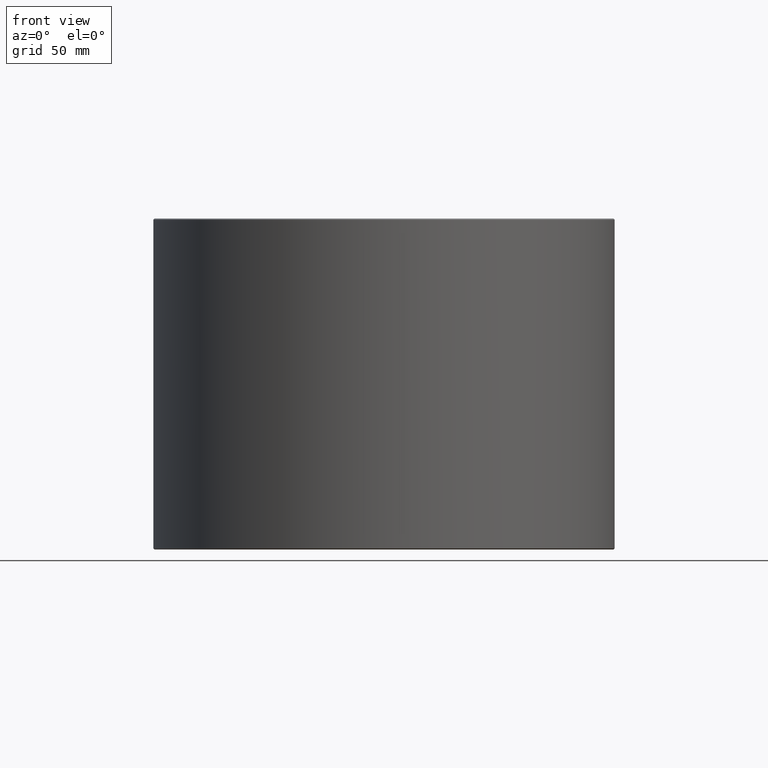
[diagram: clean part render]
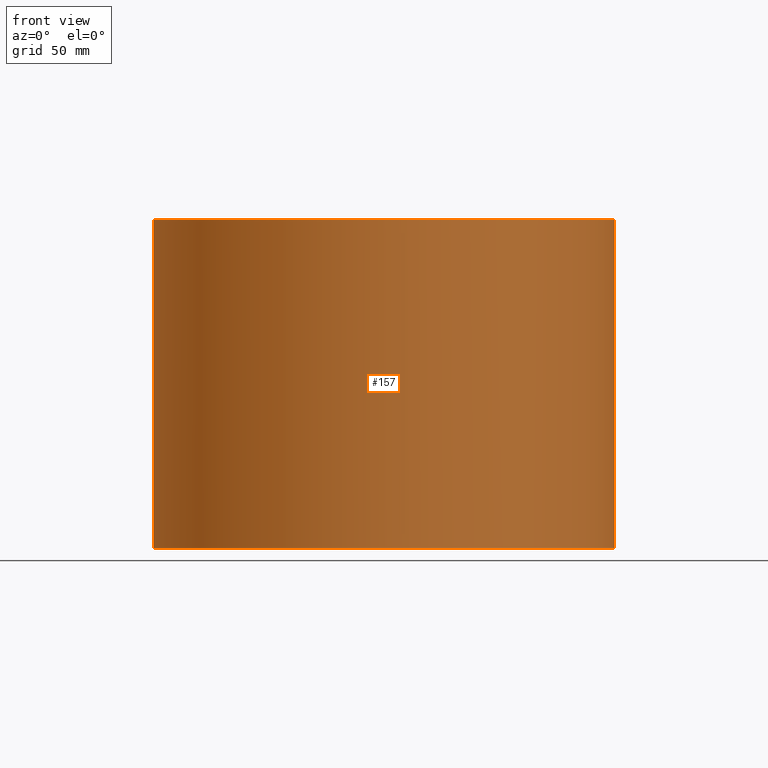
[diagram: same view with one face highlighted and labeled with its STEP entity id]
A machine part, front view. The second image highlights one B-rep face of the part: STEP entity #157.
In plain terms, the highlighted cylindrical surface (partial cylindrical patch) has radius 97.5 mm, axis along (-0, 0, -1).
Its self-contained STEP definition (entity closure, byte-faithful):
#157=ADVANCED_FACE('',(#173),#174,.T.);
#173=FACE_OUTER_BOUND('',#194,.T.);
#174=CYLINDRICAL_SURFACE('',#195,0.0975);
#194=EDGE_LOOP('',(#234,#235,#236,#237));
#195=AXIS2_PLACEMENT_3D('',#238,#239,#240);
#234=ORIENTED_EDGE('',*,*,#297,.T.);
#235=ORIENTED_EDGE('',*,*,#298,.F.);
#236=ORIENTED_EDGE('',*,*,#294,.F.);
#237=ORIENTED_EDGE('',*,*,#299,.T.);
#238=CARTESIAN_POINT('',(-3.46944695195362E-018,-2.60208521396521E-018,-5.42101086242752E-020));
#239=DIRECTION('',(6.12323399573677E-017,0.0,-1.0));
#240=DIRECTION('',(-1.0,0.0,-6.12323399573677E-017));
#294=EDGE_CURVE('',#326,#327,#328,.T.);
#297=EDGE_CURVE('',#331,#332,#333,.T.);
#298=EDGE_CURVE('',#327,#332,#334,.T.);
#299=EDGE_CURVE('',#326,#331,#335,.T.);
#326=VERTEX_POINT('',#372);
#327=VERTEX_POINT('',#373);
#328=CIRCLE('',#374,0.0975);
#331=VERTEX_POINT('',#379);
#332=VERTEX_POINT('',#380);
#333=CIRCLE('',#381,0.0975);
#334=LINE('',#382,#383);
#335=LINE('',#384,#385);
#372=CARTESIAN_POINT('',(0.00170160962763515,0.0974851502777482,0.0005));
#373=CARTESIAN_POINT('',(-3.46944695195362E-018,0.0975,0.0005));
#374=AXIS2_PLACEMENT_3D('',#422,#423,#424);
#379=CARTESIAN_POINT('',(0.00170160962763514,0.0974851502777481,0.1395));
#380=CARTESIAN_POINT('',(-1.21430643318376E-017,0.0975,0.1395));
#381=AXIS2_PLACEMENT_3D('',#427,#428,#429);
#382=CARTESIAN_POINT('',(-3.46944695195362E-018,0.0975,0.0005));
#383=VECTOR('',#430,1.0);
#384=CARTESIAN_POINT('',(0.00170160962763515,0.0974851502777482,0.0005));
#385=VECTOR('',#431,1.0);
#422=CARTESIAN_POINT('',(-3.46944695195362E-018,-2.60208521396521E-018,0.0005));
#423=DIRECTION('',(6.12323399573677E-017,0.0,-1.0));
#424=DIRECTION('',(-1.0,0.0,-6.12323399573677E-017));
#427=CARTESIAN_POINT('',(-1.21430643318376E-017,-2.60208521396521E-018,0.1395));
#428=DIRECTION('',(6.12323399573677E-017,0.0,-1.0));
#429=DIRECTION('',(-1.0,0.0,-6.12323399573677E-017));
#430=DIRECTION('',(-6.24001250351369E-017,-1.99680400112438E-016,1.0));
#431=DIRECTION('',(-6.5884850676135E-017,-1.99629607160519E-016,1.0));